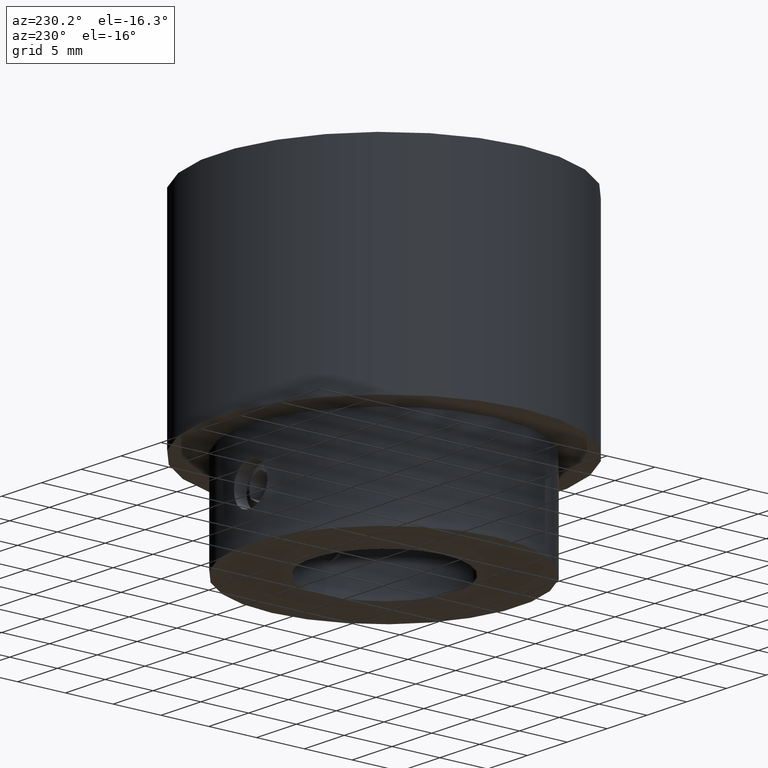
[diagram: clean part render]
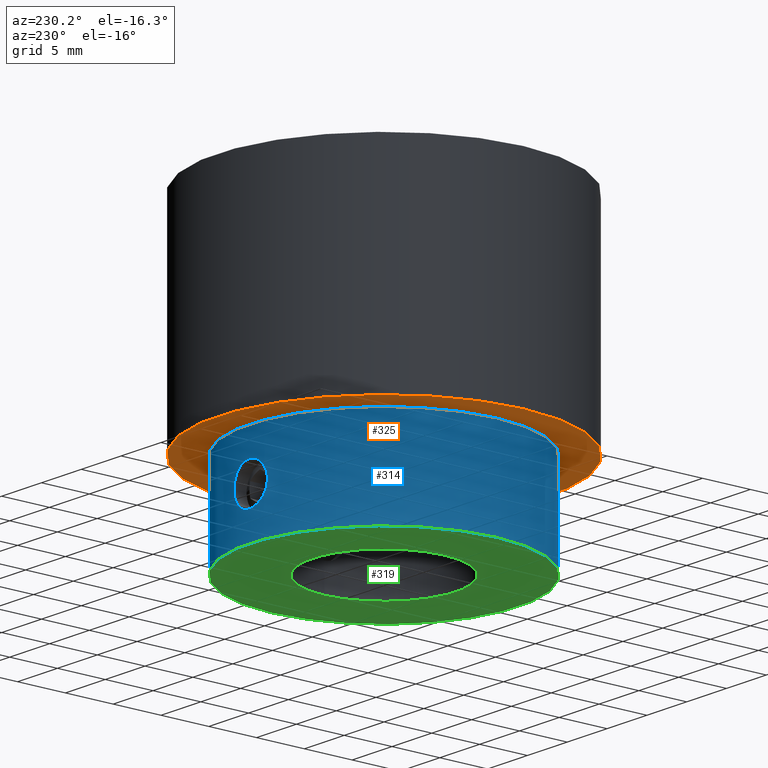
[diagram: same view with three faces highlighted in distinct colors, each labeled with its STEP entity id]
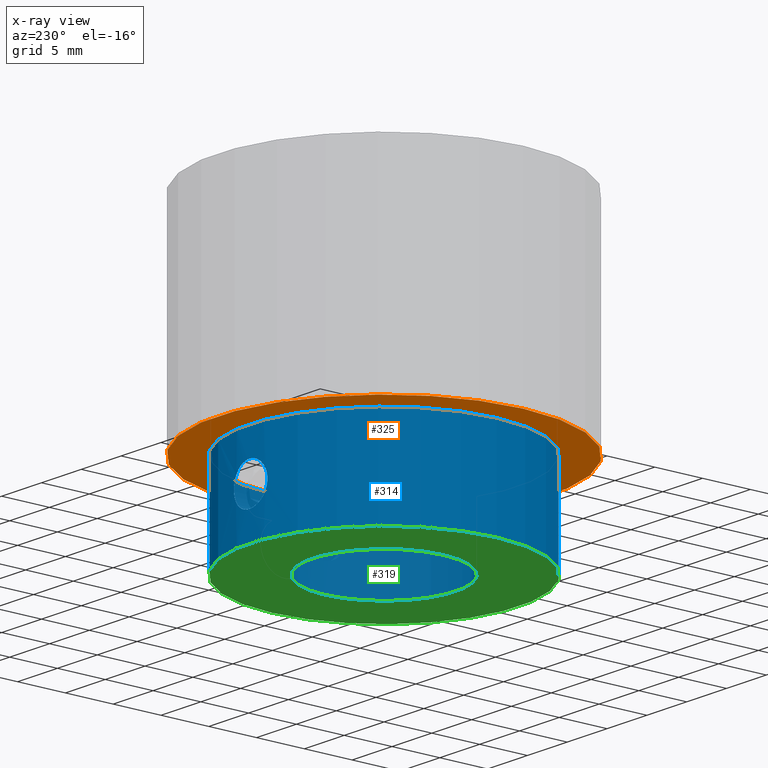
[diagram: x-ray of the same camera — body ghosted, the three highlighted faces saturated]
A machine part, auxiliary view with three faces highlighted in distinct colors.
The next image is the same camera in x-ray (body ghosted, the three faces saturated) — at least one of them is partly hidden behind the body in this view.
Their STEP definitions:

[orange] entity #325 — the highlighted planar face has unit normal (0, 0, 1).
#325 = ADVANCED_FACE( '', ( #394, #395 ), #396, .F. );
#394 = FACE_OUTER_BOUND( '', #487, .T. );
#395 = FACE_BOUND( '', #488, .T. );
#396 = PLANE( '', #489 );
#487 = EDGE_LOOP( '', ( #601 ) );
#488 = EDGE_LOOP( '', ( #602 ) );
#489 = AXIS2_PLACEMENT_3D( '', #603, #604, #605 );
#601 = ORIENTED_EDGE( '', *, *, #768, .F. );
#602 = ORIENTED_EDGE( '', *, *, #770, .T. );
#603 = CARTESIAN_POINT( '', ( 0.000000000000000, 0.000000000000000, -22.0000000000000 ) );
#604 = DIRECTION( '', ( 0.000000000000000, 0.000000000000000, 1.00000000000000 ) );
#605 = DIRECTION( '', ( 1.00000000000000, 0.000000000000000, 0.000000000000000 ) );
#768 = EDGE_CURVE( '', #836, #836, #837, .T. );
#770 = EDGE_CURVE( '', #840, #840, #841, .T. );
#836 = VERTEX_POINT( '', #1160 );
#837 = CIRCLE( '', #1161, 17.5000000000000 );
#840 = VERTEX_POINT( '', #1164 );
#841 = CIRCLE( '', #1165, 14.0000000000000 );
#1160 = CARTESIAN_POINT( '', ( 17.5000000000000, 0.000000000000000, -22.0000000000000 ) );
#1161 = AXIS2_PLACEMENT_3D( '', #1342, #1343, #1344 );
#1164 = CARTESIAN_POINT( '', ( 14.0000000000000, 0.000000000000000, -22.0000000000000 ) );
#1165 = AXIS2_PLACEMENT_3D( '', #1348, #1349, #1350 );
#1342 = CARTESIAN_POINT( '', ( 0.000000000000000, 0.000000000000000, -22.0000000000000 ) );
#1343 = DIRECTION( '', ( 0.000000000000000, 0.000000000000000, 1.00000000000000 ) );
#1344 = DIRECTION( '', ( 1.00000000000000, 0.000000000000000, 0.000000000000000 ) );
#1348 = CARTESIAN_POINT( '', ( 0.000000000000000, 0.000000000000000, -22.0000000000000 ) );
#1349 = DIRECTION( '', ( 0.000000000000000, 0.000000000000000, 1.00000000000000 ) );
#1350 = DIRECTION( '', ( 1.00000000000000, 0.000000000000000, 0.000000000000000 ) );

[blue] entity #314 — the highlighted cylindrical surface (bore or boss wall) has radius 14.1 mm, axis along (-0, 0, -1).
#314 = ADVANCED_FACE( '', ( #357, #358, #359, #360 ), #361, .T. );
#357 = FACE_BOUND( '', #450, .T. );
#358 = FACE_OUTER_BOUND( '', #451, .T. );
#359 = FACE_BOUND( '', #452, .T. );
#360 = FACE_OUTER_BOUND( '', #453, .T. );
#361 = CYLINDRICAL_SURFACE( '', #454, 14.1000000000000 );
#450 = EDGE_LOOP( '', ( #542 ) );
#451 = EDGE_LOOP( '', ( #543 ) );
#452 = EDGE_LOOP( '', ( #544 ) );
#453 = EDGE_LOOP( '', ( #545 ) );
#454 = AXIS2_PLACEMENT_3D( '', #546, #547, #548 );
#542 = ORIENTED_EDGE( '', *, *, #758, .F. );
#543 = ORIENTED_EDGE( '', *, *, #759, .T. );
#544 = ORIENTED_EDGE( '', *, *, #760, .F. );
#545 = ORIENTED_EDGE( '', *, *, #761, .T. );
#546 = CARTESIAN_POINT( '', ( 0.000000000000000, 0.000000000000000, -32.0000000000000 ) );
#547 = DIRECTION( '', ( -0.000000000000000, 0.000000000000000, -1.00000000000000 ) );
#548 = DIRECTION( '', ( 1.00000000000000, 0.000000000000000, 0.000000000000000 ) );
#758 = EDGE_CURVE( '', #816, #816, #817, .T. );
#759 = EDGE_CURVE( '', #818, #818, #819, .T. );
#760 = EDGE_CURVE( '', #820, #820, #821, .T. );
#761 = EDGE_CURVE( '', #822, #822, #823, .F. );
#816 = VERTEX_POINT( '', #916 );
#817 = B_SPLINE_CURVE_WITH_KNOTS( '', 3, ( #917, #918, #919, #920, #921, #922, #923, #924, #925, #926, #927, #928, #929, #930, #931, #932, #933, #934, #935, #936, #937, #938, #939, #940, #941, #942, #943, #944, #945, #946, #947, #948, #949, #950, #951, #952, #953, #954, #955, #956, #957, #958, #959, #960, #961, #962, #963, #964, #965, #966, #967, #968, #969, #970, #971, #972 ), .UNSPECIFIED., .T., .F., ( 2, 2, 2, 2, 2, 2, 2, 2, 2, 2, 2, 2, 2, 2, 2, 2, 2, 2, 2, 2, 2, 2, 2, 2, 2, 2, 2, 2, 2, 2 ), ( -0.000821762864821472, 0.000000000000000, 0.000410881432410746, 0.000821762864821491, 0.00123264429723224, 0.00164352572964298, 0.00246528859446447, 0.00328705145928595, 0.00369793289169669, 0.00410881432410743, 0.00451969575651817, 0.00493057718892890, 0.00534145862133964, 0.00575234005375038, 0.00616322148616112, 0.00657410291857185, 0.00739586578339333, 0.00780674721580407, 0.00821762864821480, 0.00862851008062554, 0.00903939151303628, 0.00945027294544702, 0.00986115437785775, 0.0102720358102685, 0.0106829172426792, 0.0110937986750900, 0.0115046801075007, 0.0123264429723222, 0.0131482058371436, 0.0135590872695544 ), .UNSPECIFIED. );
#818 = VERTEX_POINT( '', #973 );
#819 = CIRCLE( '', #974, 14.1000000000000 );
#820 = VERTEX_POINT( '', #975 );
#821 = B_SPLINE_CURVE_WITH_KNOTS( '', 3, ( #976, #977, #978, #979, #980, #981, #982, #983, #984, #985, #986, #987, #988, #989, #990, #991, #992, #993, #994, #995, #996, #997, #998, #999, #1000, #1001, #1002, #1003, #1004, #1005, #1006, #1007, #1008, #1009, #1010, #1011, #1012, #1013, #1014, #1015, #1016, #1017, #1018, #1019, #1020, #1021, #1022, #1023, #1024, #1025, #1026, #1027, #1028, #1029, #1030, #1031 ), .UNSPECIFIED., .T., .F., ( 2, 2, 2, 2, 2, 2, 2, 2, 2, 2, 2, 2, 2, 2, 2, 2, 2, 2, 2, 2, 2, 2, 2, 2, 2, 2, 2, 2, 2, 2 ), ( -0.000821762864821473, 0.000000000000000, 0.000410881432410746, 0.000821762864821491, 0.00123264429723224, 0.00164352572964298, 0.00246528859446447, 0.00328705145928595, 0.00369793289169669, 0.00410881432410743, 0.00451969575651817, 0.00493057718892890, 0.00534145862133964, 0.00575234005375038, 0.00616322148616112, 0.00657410291857185, 0.00739586578339333, 0.00780674721580406, 0.00821762864821480, 0.00862851008062554, 0.00903939151303628, 0.00945027294544701, 0.00986115437785775, 0.0102720358102685, 0.0106829172426792, 0.0110937986750900, 0.0115046801075007, 0.0123264429723222, 0.0131482058371436, 0.0135590872695544 ), .UNSPECIFIED. );
#822 = VERTEX_POINT( '', #1032 );
#823 = CIRCLE( '', #1033, 14.1000000000000 );
#916 = CARTESIAN_POINT( '', ( -0.245248312054368, 14.0978669757320, -24.9143698157548 ) );
#917 = CARTESIAN_POINT( '', ( -0.521187438548276, 14.0930667031008, -24.9468173730992 ) );
#918 = CARTESIAN_POINT( '', ( -0.107278748807411, 14.1002671120476, -24.8981460370826 ) );
#919 = CARTESIAN_POINT( '', ( 0.0299812353996340, 14.1006296874312, -24.8957488104057 ) );
#920 = CARTESIAN_POINT( '', ( 0.303139454620019, 14.0974027014764, -24.9174826736765 ) );
#921 = CARTESIAN_POINT( '', ( 0.440523618577184, 14.0937402668313, -24.9421134442483 ) );
#922 = CARTESIAN_POINT( '', ( 0.705451856355112, 14.0829653640769, -25.0172504411215 ) );
#923 = CARTESIAN_POINT( '', ( 0.832774865053403, 14.0759191338259, -25.0673005129041 ) );
#924 = CARTESIAN_POINT( '', ( 1.07727076793906, 14.0593207919307, -25.1921479662789 ) );
#925 = CARTESIAN_POINT( '', ( 1.19474948009346, 14.0497043135244, -25.2675779683990 ) );
#926 = CARTESIAN_POINT( '', ( 1.51672294546789, 14.0198438642264, -25.5220280213305 ) );
#927 = CARTESIAN_POINT( '', ( 1.69921597682639, 13.9978848609045, -25.7361288042283 ) );
#928 = CARTESIAN_POINT( '', ( 1.96612025698485, 13.9628967857718, -26.2131858729807 ) );
#929 = CARTESIAN_POINT( '', ( 2.05331305585433, 13.9497299039609, -26.4812077648537 ) );
#930 = CARTESIAN_POINT( '', ( 2.10158728027463, 13.9425103775500, -26.8898143587604 ) );
#931 = CARTESIAN_POINT( '', ( 2.10427855631682, 13.9420993239694, -27.0298427320399 ) );
#932 = CARTESIAN_POINT( '', ( 2.08245038728546, 13.9453763730671, -27.3037749425563 ) );
#933 = CARTESIAN_POINT( '', ( 2.05831155853491, 13.9490066983788, -27.4385702024310 ) );
#934 = CARTESIAN_POINT( '', ( 1.98334808508838, 13.9598626324470, -27.7037902157852 ) );
#935 = CARTESIAN_POINT( '', ( 1.93240664753753, 13.9670950425289, -27.8333732184404 ) );
#936 = CARTESIAN_POINT( '', ( 1.80798681694702, 13.9837449579227, -28.0769819136860 ) );
#937 = CARTESIAN_POINT( '', ( 1.73392775117280, 13.9932465140176, -28.1927442656524 ) );
#938 = CARTESIAN_POINT( '', ( 1.56244474609309, 14.0134299821193, -28.4099328866793 ) );
#939 = CARTESIAN_POINT( '', ( 1.46744450814950, 14.0238195720835, -28.5084062395092 ) );
#940 = CARTESIAN_POINT( '', ( 1.25953332263113, 14.0440195308904, -28.6858999309183 ) );
#941 = CARTESIAN_POINT( '', ( 1.14520825674427, 14.0539302877026, -28.7656107280828 ) );
#942 = CARTESIAN_POINT( '', ( 0.905358021293107, 14.0714173179605, -28.8997921064466 ) );
#943 = CARTESIAN_POINT( '', ( 0.780087423143629, 14.0790114810032, -28.9545671482479 ) );
#944 = CARTESIAN_POINT( '', ( 0.518825950311982, 14.0910581683296, -29.0395315045470 ) );
#945 = CARTESIAN_POINT( '', ( 0.382164691589264, 14.0954777128002, -29.0694792205378 ) );
#946 = CARTESIAN_POINT( '', ( -0.0262779961763911, 14.1026053153699, -29.1176604661413 ) );
#947 = CARTESIAN_POINT( '', ( -0.307656068902365, 14.0991085733724, -29.0953021553919 ) );
#948 = CARTESIAN_POINT( '', ( -0.702816486499365, 14.0830901329014, -28.9836292070559 ) );
#949 = CARTESIAN_POINT( '', ( -0.832079579086291, 14.0759652654839, -28.9330444234239 ) );
#950 = CARTESIAN_POINT( '', ( -1.07772220600397, 14.0592912135615, -28.8076316039361 ) );
#951 = CARTESIAN_POINT( '', ( -1.19279614215067, 14.0498717815759, -28.7337780787888 ) );
#952 = CARTESIAN_POINT( '', ( -1.40783616552917, 14.0299557036536, -28.5642079127297 ) );
#953 = CARTESIAN_POINT( '', ( -1.50846907572557, 14.0193625927922, -28.4674047069273 ) );
#954 = CARTESIAN_POINT( '', ( -1.68627462002812, 13.9990886977135, -28.2590605355509 ) );
#955 = CARTESIAN_POINT( '', ( -1.76446966811840, 13.9893265898320, -28.1469993877059 ) );
#956 = CARTESIAN_POINT( '', ( -1.89913683704815, 13.9716817499132, -27.9067745471033 ) );
#957 = CARTESIAN_POINT( '', ( -1.95482713545231, 13.9638990467509, -27.7793393289799 ) );
#958 = CARTESIAN_POINT( '', ( -2.03942240680946, 13.9517949369949, -27.5191099746672 ) );
#959 = CARTESIAN_POINT( '', ( -2.06911414869288, 13.9473667324007, -27.3847262940607 ) );
#960 = CARTESIAN_POINT( '', ( -2.10174392208318, 13.9424870311715, -27.1091795202826 ) );
#961 = CARTESIAN_POINT( '', ( -2.10427991212956, 13.9420989824376, -26.9719977882999 ) );
#962 = CARTESIAN_POINT( '', ( -2.08279655801660, 13.9453245384463, -26.6987748842372 ) );
#963 = CARTESIAN_POINT( '', ( -2.05825486420627, 13.9490149040828, -26.5612306885229 ) );
#964 = CARTESIAN_POINT( '', ( -1.98340810999102, 13.9598539444213, -26.2964206768639 ) );
#965 = CARTESIAN_POINT( '', ( -1.93348968661202, 13.9669458310418, -26.1690454515385 ) );
#966 = CARTESIAN_POINT( '', ( -1.80877385723147, 13.9836438509026, -25.9242653843815 ) );
#967 = CARTESIAN_POINT( '', ( -1.73349199657330, 13.9932940069910, -25.8068088252559 ) );
#968 = CARTESIAN_POINT( '', ( -1.47942485644070, 14.0232089325961, -25.4847109777905 ) );
#969 = CARTESIAN_POINT( '', ( -1.26546088499990, 14.0451329748294, -25.3019632553853 ) );
#970 = CARTESIAN_POINT( '', ( -0.788603202886894, 14.0799593934252, -25.0345929108902 ) );
#971 = CARTESIAN_POINT( '', ( -0.521187438548276, 14.0930667031008, -24.9468173730992 ) );
#972 = CARTESIAN_POINT( '', ( -0.107278748807411, 14.1002671120476, -24.8981460370826 ) );
#973 = CARTESIAN_POINT( '', ( 14.1000000000000, 0.000000000000000, -32.0000000000000 ) );
#974 = AXIS2_PLACEMENT_3D( '', #1324, #1325, #1326 );
#975 = CARTESIAN_POINT( '', ( 14.0978669757320, 0.245248312054369, -24.9143698157548 ) );
#976 = CARTESIAN_POINT( '', ( 14.0930667031008, 0.521187438548277, -24.9468173730992 ) );
#977 = CARTESIAN_POINT( '', ( 14.1002671120476, 0.107278748807412, -24.8981460370826 ) );
#978 = CARTESIAN_POINT( '', ( 14.1006296874312, -0.0299812353996330, -24.8957488104057 ) );
#979 = CARTESIAN_POINT( '', ( 14.0974027014764, -0.303139454620018, -24.9174826736765 ) );
#980 = CARTESIAN_POINT( '', ( 14.0937402668313, -0.440523618577183, -24.9421134442483 ) );
#981 = CARTESIAN_POINT( '', ( 14.0829653640769, -0.705451856355111, -25.0172504411215 ) );
#982 = CARTESIAN_POINT( '', ( 14.0759191338259, -0.832774865053401, -25.0673005129041 ) );
#983 = CARTESIAN_POINT( '', ( 14.0593207919307, -1.07727076793906, -25.1921479662789 ) );
#984 = CARTESIAN_POINT( '', ( 14.0497043135244, -1.19474948009345, -25.2675779683990 ) );
#985 = CARTESIAN_POINT( '', ( 14.0198438642264, -1.51672294546789, -25.5220280213305 ) );
#986 = CARTESIAN_POINT( '', ( 13.9978848609045, -1.69921597682639, -25.7361288042283 ) );
#987 = CARTESIAN_POINT( '', ( 13.9628967857718, -1.96612025698485, -26.2131858729807 ) );
#988 = CARTESIAN_POINT( '', ( 13.9497299039609, -2.05331305585433, -26.4812077648537 ) );
#989 = CARTESIAN_POINT( '', ( 13.9425103775500, -2.10158728027463, -26.8898143587604 ) );
#990 = CARTESIAN_POINT( '', ( 13.9420993239694, -2.10427855631682, -27.0298427320399 ) );
#991 = CARTESIAN_POINT( '', ( 13.9453763730671, -2.08245038728546, -27.3037749425562 ) );
#992 = CARTESIAN_POINT( '', ( 13.9490066983788, -2.05831155853490, -27.4385702024309 ) );
#993 = CARTESIAN_POINT( '', ( 13.9598626324470, -1.98334808508837, -27.7037902157852 ) );
#994 = CARTESIAN_POINT( '', ( 13.9670950425289, -1.93240664753752, -27.8333732184404 ) );
#995 = CARTESIAN_POINT( '', ( 13.9837449579227, -1.80798681694702, -28.0769819136860 ) );
#996 = CARTESIAN_POINT( '', ( 13.9932465140176, -1.73392775117280, -28.1927442656523 ) );
#997 = CARTESIAN_POINT( '', ( 14.0134299821193, -1.56244474609309, -28.4099328866793 ) );
#998 = CARTESIAN_POINT( '', ( 14.0238195720835, -1.46744450814950, -28.5084062395092 ) );
#999 = CARTESIAN_POINT( '', ( 14.0440195308904, -1.25953332263113, -28.6858999309183 ) );
#1000 = CARTESIAN_POINT( '', ( 14.0539302877026, -1.14520825674427, -28.7656107280828 ) );
#1001 = CARTESIAN_POINT( '', ( 14.0714173179605, -0.905358021293108, -28.8997921064465 ) );
#1002 = CARTESIAN_POINT( '', ( 14.0790114810032, -0.780087423143630, -28.9545671482479 ) );
#1003 = CARTESIAN_POINT( '', ( 14.0910581683296, -0.518825950311983, -29.0395315045470 ) );
#1004 = CARTESIAN_POINT( '', ( 14.0954777128002, -0.382164691589264, -29.0694792205378 ) );
#1005 = CARTESIAN_POINT( '', ( 14.1026053153699, 0.0262779961763917, -29.1176604661413 ) );
#1006 = CARTESIAN_POINT( '', ( 14.0991085733724, 0.307656068902366, -29.0953021553919 ) );
#1007 = CARTESIAN_POINT( '', ( 14.0830901329014, 0.702816486499366, -28.9836292070559 ) );
#1008 = CARTESIAN_POINT( '', ( 14.0759652654839, 0.832079579086292, -28.9330444234239 ) );
#1009 = CARTESIAN_POINT( '', ( 14.0592912135615, 1.07772220600397, -28.8076316039361 ) );
#1010 = CARTESIAN_POINT( '', ( 14.0498717815759, 1.19279614215067, -28.7337780787888 ) );
#1011 = CARTESIAN_POINT( '', ( 14.0299557036536, 1.40783616552917, -28.5642079127297 ) );
#1012 = CARTESIAN_POINT( '', ( 14.0193625927922, 1.50846907572557, -28.4674047069273 ) );
#1013 = CARTESIAN_POINT( '', ( 13.9990886977135, 1.68627462002812, -28.2590605355509 ) );
#1014 = CARTESIAN_POINT( '', ( 13.9893265898320, 1.76446966811840, -28.1469993877059 ) );
#1015 = CARTESIAN_POINT( '', ( 13.9716817499132, 1.89913683704815, -27.9067745471033 ) );
#1016 = CARTESIAN_POINT( '', ( 13.9638990467509, 1.95482713545232, -27.7793393289799 ) );
#1017 = CARTESIAN_POINT( '', ( 13.9517949369949, 2.03942240680946, -27.5191099746672 ) );
#1018 = CARTESIAN_POINT( '', ( 13.9473667324007, 2.06911414869288, -27.3847262940607 ) );
#1019 = CARTESIAN_POINT( '', ( 13.9424870311715, 2.10174392208318, -27.1091795202826 ) );
#1020 = CARTESIAN_POINT( '', ( 13.9420989824376, 2.10427991212956, -26.9719977882999 ) );
#1021 = CARTESIAN_POINT( '', ( 13.9453245384463, 2.08279655801660, -26.6987748842373 ) );
#1022 = CARTESIAN_POINT( '', ( 13.9490149040828, 2.05825486420627, -26.5612306885229 ) );
#1023 = CARTESIAN_POINT( '', ( 13.9598539444213, 1.98340810999102, -26.2964206768639 ) );
#1024 = CARTESIAN_POINT( '', ( 13.9669458310418, 1.93348968661202, -26.1690454515385 ) );
#1025 = CARTESIAN_POINT( '', ( 13.9836438509026, 1.80877385723147, -25.9242653843815 ) );
#1026 = CARTESIAN_POINT( '', ( 13.9932940069910, 1.73349199657330, -25.8068088252559 ) );
#1027 = CARTESIAN_POINT( '', ( 14.0232089325961, 1.47942485644070, -25.4847109777905 ) );
#1028 = CARTESIAN_POINT( '', ( 14.0451329748294, 1.26546088499990, -25.3019632553853 ) );
#1029 = CARTESIAN_POINT( '', ( 14.0799593934252, 0.788603202886894, -25.0345929108902 ) );
#1030 = CARTESIAN_POINT( '', ( 14.0930667031008, 0.521187438548277, -24.9468173730992 ) );
#1031 = CARTESIAN_POINT( '', ( 14.1002671120476, 0.107278748807412, -24.8981460370826 ) );
#1032 = CARTESIAN_POINT( '', ( 14.1000000000000, 0.000000000000000, -22.0000000000000 ) );
#1033 = AXIS2_PLACEMENT_3D( '', #1327, #1328, #1329 );
#1324 = CARTESIAN_POINT( '', ( 0.000000000000000, 0.000000000000000, -32.0000000000000 ) );
#1325 = DIRECTION( '', ( 0.000000000000000, 0.000000000000000, 1.00000000000000 ) );
#1326 = DIRECTION( '', ( 1.00000000000000, 0.000000000000000, -0.000000000000000 ) );
#1327 = CARTESIAN_POINT( '', ( 0.000000000000000, 0.000000000000000, -22.0000000000000 ) );
#1328 = DIRECTION( '', ( 0.000000000000000, 0.000000000000000, 1.00000000000000 ) );
#1329 = DIRECTION( '', ( 1.00000000000000, 0.000000000000000, -0.000000000000000 ) );

[green] entity #319 — the highlighted planar face has unit normal (0, 0, 1).
#319 = ADVANCED_FACE( '', ( #376, #377 ), #378, .F. );
#376 = FACE_OUTER_BOUND( '', #469, .T. );
#377 = FACE_BOUND( '', #470, .T. );
#378 = PLANE( '', #471 );
#469 = EDGE_LOOP( '', ( #571 ) );
#470 = EDGE_LOOP( '', ( #572 ) );
#471 = AXIS2_PLACEMENT_3D( '', #573, #574, #575 );
#571 = ORIENTED_EDGE( '', *, *, #759, .F. );
#572 = ORIENTED_EDGE( '', *, *, #763, .T. );
#573 = CARTESIAN_POINT( '', ( 0.000000000000000, 0.000000000000000, -32.0000000000000 ) );
#574 = DIRECTION( '', ( 0.000000000000000, 0.000000000000000, 1.00000000000000 ) );
#575 = DIRECTION( '', ( 1.00000000000000, 0.000000000000000, 0.000000000000000 ) );
#759 = EDGE_CURVE( '', #818, #818, #819, .T. );
#763 = EDGE_CURVE( '', #826, #826, #827, .T. );
#818 = VERTEX_POINT( '', #973 );
#819 = CIRCLE( '', #974, 14.1000000000000 );
#826 = VERTEX_POINT( '', #1093 );
#827 = CIRCLE( '', #1094, 7.50000000000000 );
#973 = CARTESIAN_POINT( '', ( 14.1000000000000, 0.000000000000000, -32.0000000000000 ) );
#974 = AXIS2_PLACEMENT_3D( '', #1324, #1325, #1326 );
#1093 = CARTESIAN_POINT( '', ( 7.50000000000000, 0.000000000000000, -32.0000000000000 ) );
#1094 = AXIS2_PLACEMENT_3D( '', #1330, #1331, #1332 );
#1324 = CARTESIAN_POINT( '', ( 0.000000000000000, 0.000000000000000, -32.0000000000000 ) );
#1325 = DIRECTION( '', ( 0.000000000000000, 0.000000000000000, 1.00000000000000 ) );
#1326 = DIRECTION( '', ( 1.00000000000000, 0.000000000000000, -0.000000000000000 ) );
#1330 = CARTESIAN_POINT( '', ( 0.000000000000000, 0.000000000000000, -32.0000000000000 ) );
#1331 = DIRECTION( '', ( 0.000000000000000, 0.000000000000000, 1.00000000000000 ) );
#1332 = DIRECTION( '', ( 1.00000000000000, 0.000000000000000, 0.000000000000000 ) );